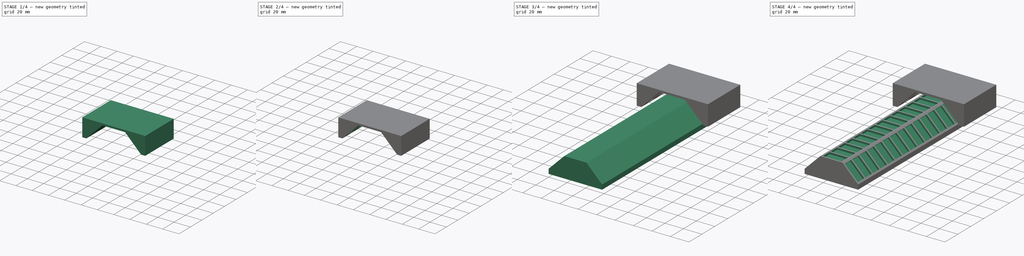
[diagram: build sequence overview — one tinted view per stage of 4, left to right]
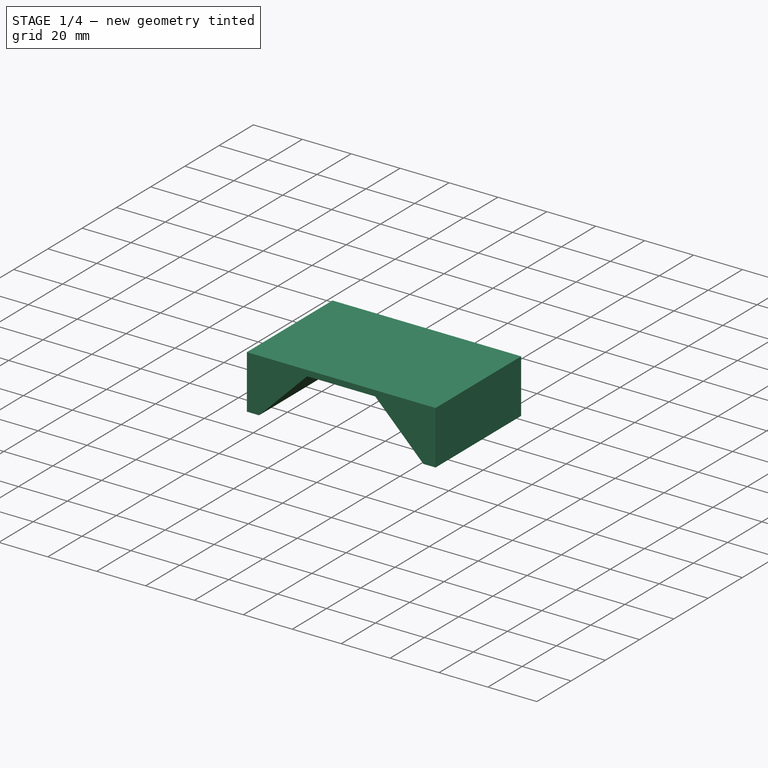
[diagram: stage 1 of 4 — iso view after this stage's code; geometry added in this stage tinted green]
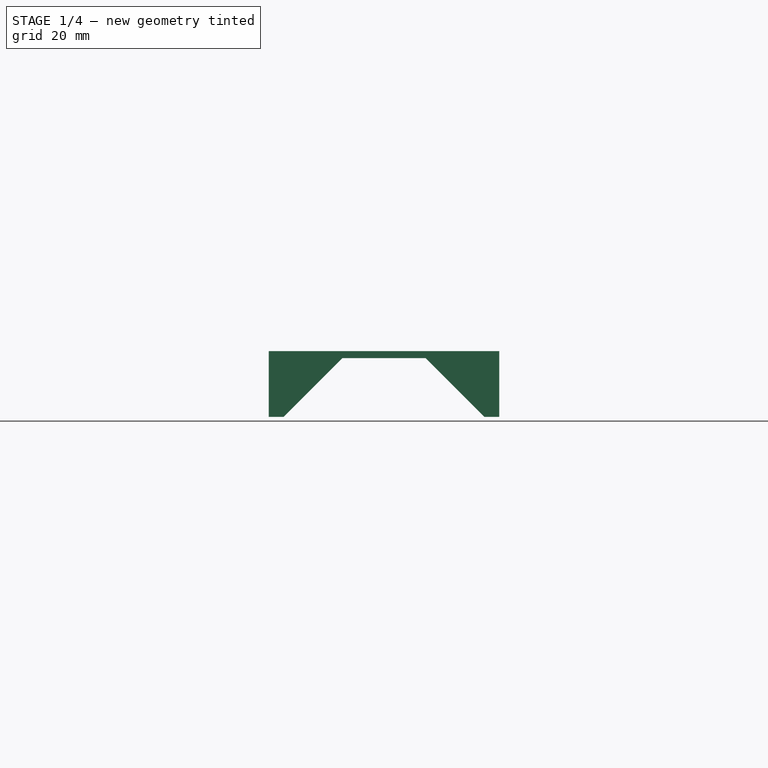
[diagram: stage 1 of 4 — front view after this stage's code; geometry added in this stage tinted green]
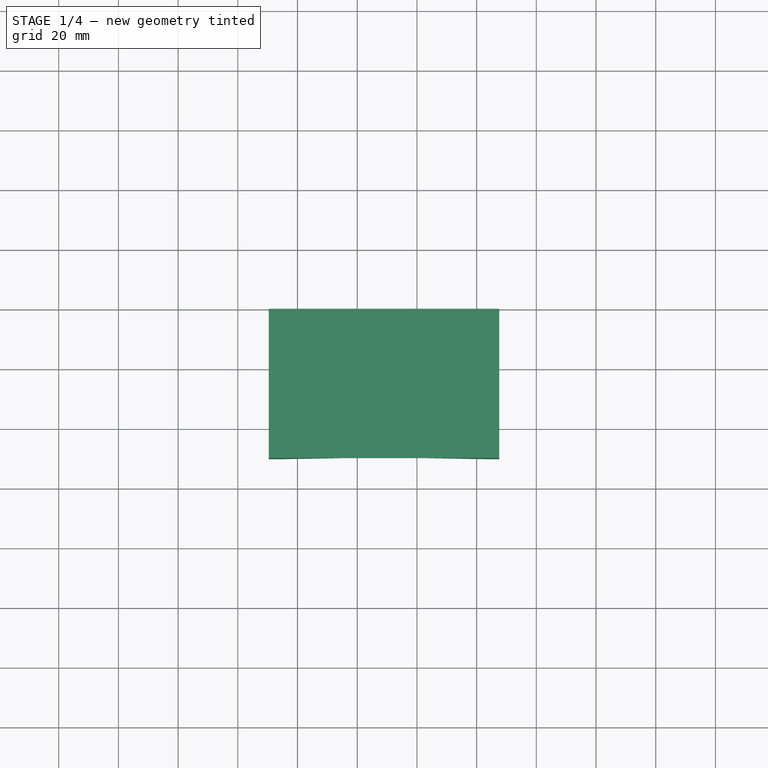
[diagram: stage 1 of 4 — top view after this stage's code; geometry added in this stage tinted green]
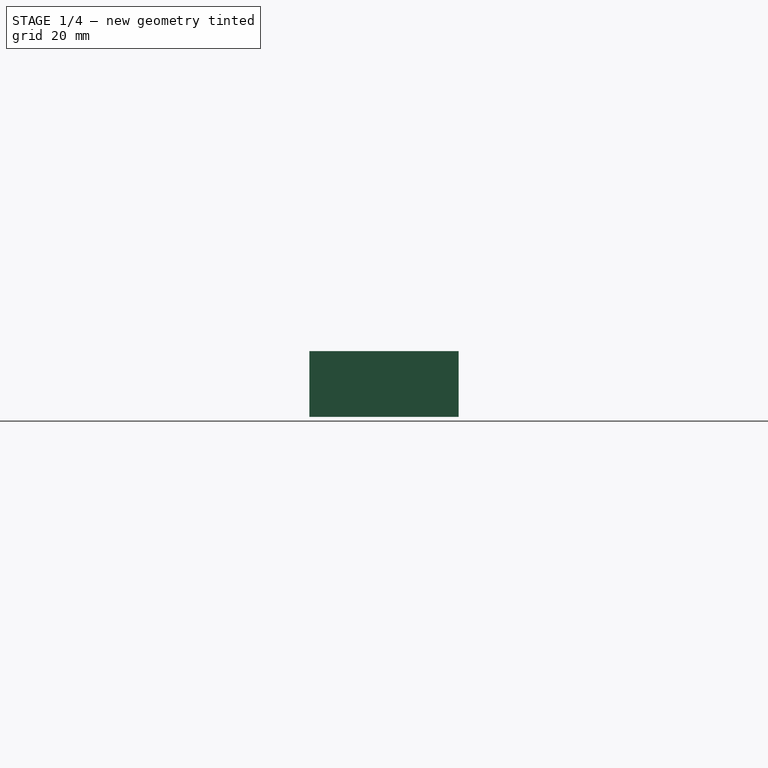
[diagram: stage 1 of 4 — right view after this stage's code; geometry added in this stage tinted green]
FCSTD DOCUMENT  (FreeCAD 0.21R33694 (Git))
Label: maglev
License: All rights reserved
LicenseURL: http://en.wikipedia.org/wiki/All_rights_reserved
objects: Sketcher::SketchObject×8, PartDesign::Pocket×6, PartDesign::Pad×2, PartDesign::LinearPattern×2, PartDesign::Body×2, App::MeasureDistance×2
note: 28 computed .brp shape members not serialized (recipe doc carries the construction recipe); baked Part::Feature solids carry a one-line shape summary decoded from their .brp

FEATURE [PartDesign::Body] Body  label="Rail"
  Group = -> [Sketch,Pad,Sketch001,Pocket,Sketch002,Pocket001,Sketch003,Pocket002,LinearPattern]
  Origin = -> Origin
  Tip = -> LinearPattern
FEATURE [Sketcher::SketchObject] Sketch004
  FullyConstrained = true
  MapMode = 5
  Placement = pos=(0,0,0) rot=(1,0,0;1.5708rad)
  Support = -> [XZ_Plane001]
  sketch-geometry (17):
    g0: LineSegment StartX=0 StartY=5 StartZ=0 EndX=16.9706 EndY=21.9706 EndZ=0
    g1: LineSegment StartX=16.9706 StartY=21.9706 StartZ=0 EndX=40.9706 EndY=21.9706 EndZ=0
    g2: LineSegment StartX=40.9706 StartY=21.9706 StartZ=0 EndX=57.9411 EndY=5 EndZ=0
    g3: LineSegment StartX=57.9411 StartY=5 StartZ=0 EndX=57.9411 EndY=0 EndZ=0
    g4: LineSegment StartX=0 StartY=5 StartZ=0 EndX=0 EndY=0 EndZ=0
    g5: LineSegment StartX=15.0571 StartY=26.59 StartZ=0 EndX=42.884 EndY=26.59 EndZ=0
    g6: LineSegment StartX=42.884 StartY=26.59 StartZ=0 EndX=62.5605 EndY=6.91342 EndZ=0
    g7: LineSegment StartX=62.5605 StartY=6.91342 StartZ=0 EndX=67.5605 EndY=6.91342 EndZ=0
    g8: LineSegment StartX=67.5605 StartY=6.91342 StartZ=0 EndX=67.5605 EndY=28.9134 EndZ=0
    g9: LineSegment StartX=67.5605 StartY=28.9134 StartZ=0 EndX=-9.6194 EndY=28.9134 EndZ=0
    g10: LineSegment StartX=-9.6194 StartY=28.9134 StartZ=0 EndX=-9.6194 EndY=6.91342 EndZ=0
    g11: LineSegment StartX=15.0571 StartY=26.59 StartZ=0 EndX=-4.6194 EndY=6.91342 EndZ=0
    g12: LineSegment StartX=-4.6194 StartY=6.91342 StartZ=0 EndX=-9.6194 EndY=6.91342 EndZ=0
    g13: LineSegment StartX=16.9706 StartY=21.9706 StartZ=0 EndX=15.0571 EndY=26.59 EndZ=0
    g14: LineSegment StartX=40.9706 StartY=21.9706 StartZ=0 EndX=42.884 EndY=26.59 EndZ=0
    g15: LineSegment StartX=57.9411 StartY=5 StartZ=0 EndX=62.5605 EndY=6.91342 EndZ=0
    g16: LineSegment StartX=0 StartY=5 StartZ=0 EndX=-4.6194 EndY=6.91342 EndZ=0
  constraints (47):
    c: PointOnObject(g0,g-2)
    c: Coincident(g1,g0)
    c: Horizontal(g1)
    c: Coincident(g2,g1)
    c: Coincident(g3,g2)
    c: PointOnObject(g3,g-1)
    c: Vertical(g3)
    c: Coincident(g4,g0)
    c: Coincident(g4,g-1)
    c: Equal(g4,g3)
    c: Equal(g0,g1)
    c: Equal(g1,g2)
    c: Distance(g2) = 24
    c: Angle(g-2,g0) = 2.35619
    c: DistanceY(g4,g4) = 5
    c: Horizontal(g5)
    c: Coincident(g6,g5)
    c: Coincident(g7,g6)
    c: Horizontal(g7)
    c: Coincident(g8,g7)
    c: Vertical(g8)
    c: Coincident(g9,g8)
    c: Horizontal(g9)
    c: Coincident(g10,g9)
    c: Vertical(g10)
    c: Coincident(g11,g5)
    c: Coincident(g12,g11)
    c: Coincident(g12,g10)
    c: Horizontal(g12)
    c: Equal(g10,g8)
    c: DistanceX(g12,g12) = 5
    c: Equal(g7,g12)
    c: Equal(g11,g5)
    c: Equal(g5,g6)
    c: Coincident(g13,g0)
    c: Coincident(g13,g5)
    c: Coincident(g14,g1)
    c: Coincident(g14,g5)
    c: Coincident(g15,g2)
    c: Coincident(g15,g6)
    c: Coincident(g16,g0)
    c: Coincident(g16,g11)
    c: Equal(g16,g13)
    c: Equal(g13,g14)
    c: Distance(g15) = 5
    c: DistanceY(g10,g10) = 22
    c: Parallel(g11,g0)
FEATURE [PartDesign::Pad] Pad001
  Direction = (0,-1,2e-16)
  Length = 50
  Length2 = 10
  Placement = pos=(0,0,0) rot=(1,0,0;1.5708rad)
  Profile = -> Sketch004
  ReferenceAxis = -> Sketch004 [N_Axis]
  Type = 0
FEATURE [Sketcher::SketchObject] Sketch005
  ExternalGeometry = -> [Pad001]
  FullyConstrained = true
  MapMode = 5
  Placement = pos=(-5.76641,1.3e-15,5.76641) rot=(0.92388,0,0.382683;3.14159rad)
  Support = -> [Pad001]
  sketch-geometry (7):
    g0: LineSegment StartX=5.53553 StartY=13.9134 StartZ=0 EndX=25.5355 EndY=13.9134 EndZ=0
    g1: LineSegment StartX=25.5355 StartY=13.9134 StartZ=0 EndX=25.5355 EndY=3.91342 EndZ=0
    g2: LineSegment StartX=25.5355 StartY=3.91342 StartZ=0 EndX=5.53553 EndY=3.91342 EndZ=0
    g3: LineSegment StartX=5.53553 StartY=3.91342 StartZ=0 EndX=5.53553 EndY=13.9134 EndZ=0
    g4: LineSegment StartX=25.5355 StartY=3.91342 StartZ=0 EndX=29.449 EndY=3.91342 EndZ=0
    g5: LineSegment StartX=5.53553 StartY=3.91342 StartZ=0 EndX=5.53553 EndY=0 EndZ=0
    g6: LineSegment StartX=5.53553 StartY=3.91342 StartZ=0 EndX=1.62212 EndY=3.91342 EndZ=0
  constraints (21):
    c: Coincident(g0,g1)
    c: Coincident(g1,g2)
    c: Coincident(g2,g3)
    c: Coincident(g3,g0)
    c: Horizontal(g0)
    c: Horizontal(g2)
    c: Vertical(g1)
    c: Vertical(g3)
    c: Coincident(g4,g1)
    c: PointOnObject(g4,g-3)
    c: Horizontal(g4)
    c: Coincident(g5,g2)
    c: PointOnObject(g5,g-1)
    c: Vertical(g5)
    c: Coincident(g6,g2)
    c: PointOnObject(g6,g-4)
    c: Horizontal(g6)
    c: Equal(g6,g5)
    c: Equal(g5,g4)
    c: DistanceX(g2,g2) = 20
    c: DistanceY(g3,g3) = 10
FEATURE [PartDesign::Pocket] Pocket003
  BaseFeature = -> Pad001
  Direction = (-0.707107,2e-16,0.707107)
  Length = 2
  Length2 = 5
  Placement = pos=(0,0,0) rot=(1,0,0;1.5708rad)
  Profile = -> Sketch005
  ReferenceAxis = -> Sketch005 [N_Axis]
  Type = 0
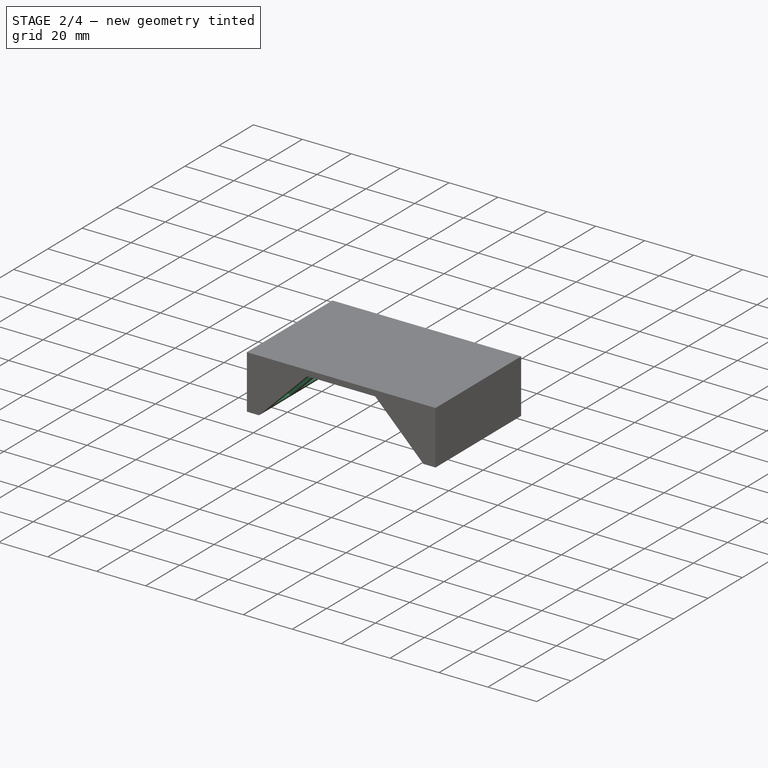
[diagram: stage 2 of 4 — iso view after this stage's code; geometry added in this stage tinted green]
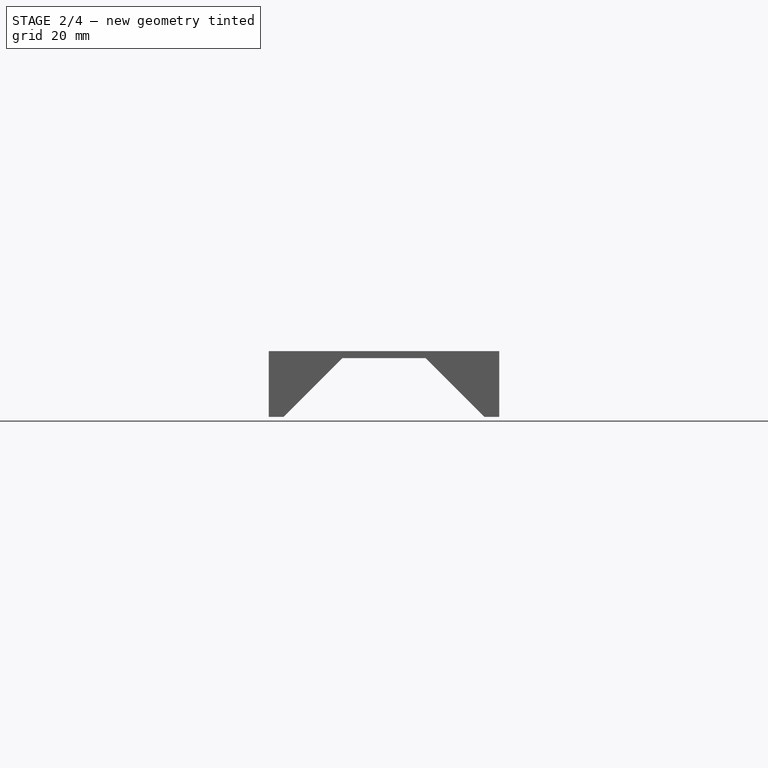
[diagram: stage 2 of 4 — front view after this stage's code; geometry added in this stage tinted green]
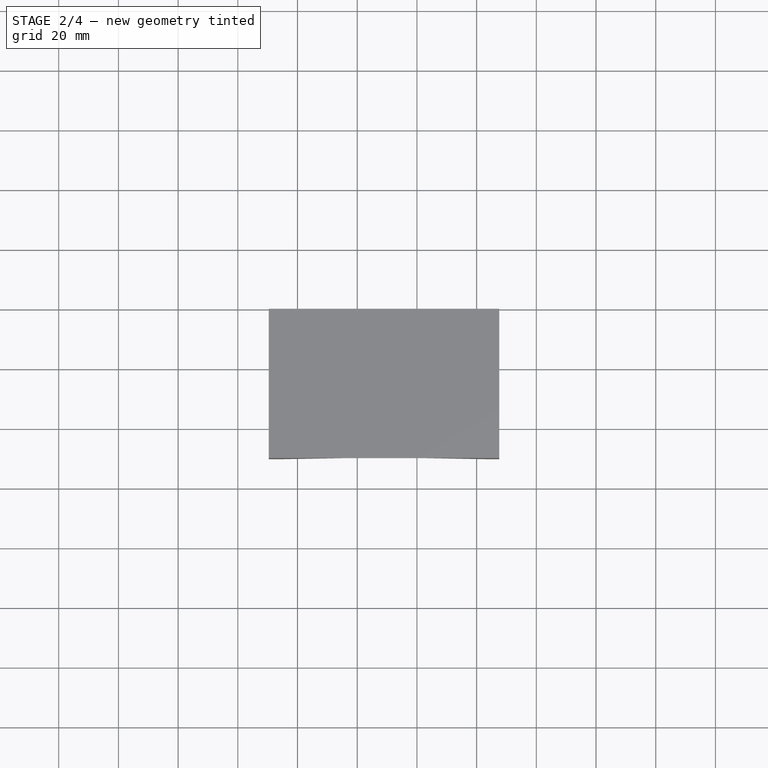
[diagram: stage 2 of 4 — top view after this stage's code; geometry added in this stage tinted green]
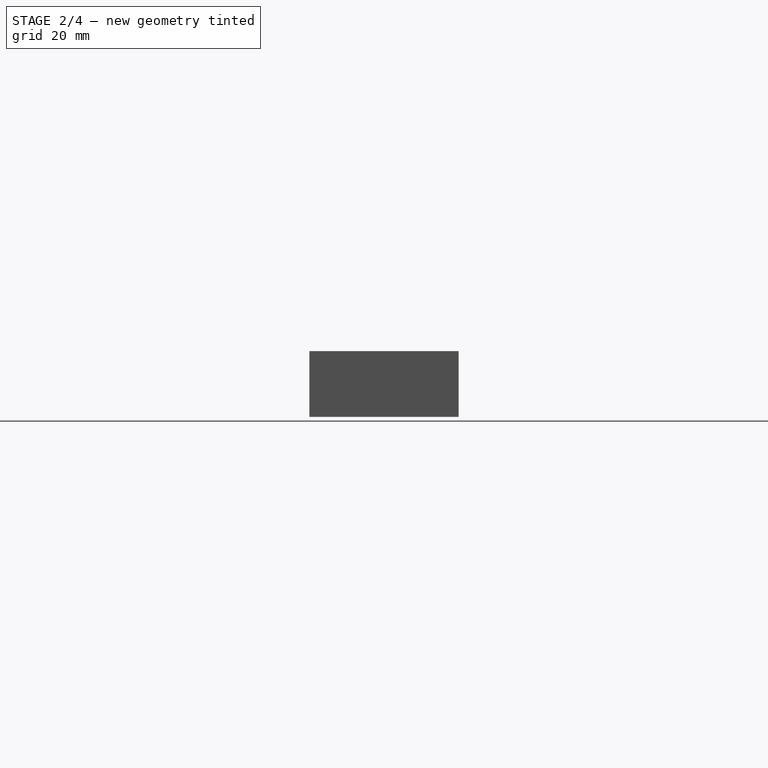
[diagram: stage 2 of 4 — right view after this stage's code; geometry added in this stage tinted green]
FEATURE [Sketcher::SketchObject] Sketch006
  ExternalGeometry = -> [Pocket003]
  FullyConstrained = true
  MapMode = 5
  Placement = pos=(0,5.9e-15,26.59) rot=(1,0,0;3.14159rad)
  Support = -> [Pocket003]
  sketch-geometry (7):
    g0: LineSegment StartX=18.9706 StartY=13.9134 StartZ=0 EndX=38.9706 EndY=13.9134 EndZ=0
    g1: LineSegment StartX=38.9706 StartY=13.9134 StartZ=0 EndX=38.9706 EndY=3.91342 EndZ=0
    g2: LineSegment StartX=38.9706 StartY=3.91342 StartZ=0 EndX=18.9706 EndY=3.91342 EndZ=0
    g3: LineSegment StartX=18.9706 StartY=3.91342 StartZ=0 EndX=18.9706 EndY=13.9134 EndZ=0
    g4: LineSegment StartX=18.9706 StartY=3.91342 StartZ=0 EndX=15.0571 EndY=3.91342 EndZ=0
    g5: LineSegment StartX=38.9706 StartY=3.91342 StartZ=0 EndX=42.884 EndY=3.91342 EndZ=0
    g6: LineSegment StartX=18.9706 StartY=3.91342 StartZ=0 EndX=18.9706 EndY=0 EndZ=0
  constraints (21):
    c: Coincident(g0,g1)
    c: Coincident(g1,g2)
    c: Coincident(g2,g3)
    c: Coincident(g3,g0)
    c: Horizontal(g0)
    c: Horizontal(g2)
    c: Vertical(g1)
    c: Vertical(g3)
    c: Coincident(g4,g2)
    c: PointOnObject(g4,g-4)
    c: Horizontal(g4)
    c: Coincident(g5,g1)
    c: PointOnObject(g5,g-3)
    c: Horizontal(g5)
    c: Coincident(g6,g2)
    c: PointOnObject(g6,g-1)
    c: Vertical(g6)
    c: Equal(g4,g6)
    c: Equal(g6,g5)
    c: DistanceX(g2,g2) = 20
    c: DistanceY(g3,g3) = 10
FEATURE [PartDesign::Pocket] Pocket004
  BaseFeature = -> Pocket003
  Direction = (0,2e-16,1)
  Length = 2
  Length2 = 5
  Placement = pos=(0,0,0) rot=(1,0,0;1.5708rad)
  Profile = -> Sketch006
  ReferenceAxis = -> Sketch006 [N_Axis]
  Type = 0
FEATURE [Sketcher::SketchObject] Sketch007
  ExternalGeometry = -> [Pocket004]
  FullyConstrained = true
  MapMode = 5
  Placement = pos=(34.737,7.7e-15,34.737) rot=(0.92388,0,-0.382683;3.14159rad)
  Support = -> [Pocket004]
  sketch-geometry (7):
    g0: LineSegment StartX=15.435 StartY=13.9134 StartZ=0 EndX=35.435 EndY=13.9134 EndZ=0
    g1: LineSegment StartX=35.435 StartY=13.9134 StartZ=0 EndX=35.435 EndY=3.91342 EndZ=0
    g2: LineSegment StartX=35.435 StartY=3.91342 StartZ=0 EndX=15.435 EndY=3.91342 EndZ=0
    g3: LineSegment StartX=15.435 StartY=3.91342 StartZ=0 EndX=15.435 EndY=13.9134 EndZ=0
    g4: LineSegment StartX=15.435 StartY=3.91342 StartZ=0 EndX=11.5216 EndY=3.91342 EndZ=0
    g5: LineSegment StartX=15.435 StartY=3.91342 StartZ=0 EndX=15.435 EndY=0 EndZ=0
    g6: LineSegment StartX=35.435 StartY=3.91342 StartZ=0 EndX=39.3484 EndY=3.91342 EndZ=0
  constraints (21):
    c: Coincident(g0,g1)
    c: Coincident(g1,g2)
    c: Coincident(g2,g3)
    c: Coincident(g3,g0)
    c: Horizontal(g0)
    c: Horizontal(g2)
    c: Vertical(g1)
    c: Vertical(g3)
    c: Coincident(g4,g2)
    c: PointOnObject(g4,g-4)
    c: Horizontal(g4)
    c: Coincident(g5,g2)
    c: PointOnObject(g5,g-1)
    c: Vertical(g5)
    c: Coincident(g6,g1)
    c: PointOnObject(g6,g-3)
    c: Horizontal(g6)
    c: Equal(g6,g5)
    c: Equal(g5,g4)
    c: DistanceX(g2,g2) = 20
    c: DistanceY(g1,g1) = 10
FEATURE [PartDesign::Pocket] Pocket005
  BaseFeature = -> Pocket004
  Direction = (0.707107,2e-16,0.707107)
  Length = 2
  Length2 = 5
  Placement = pos=(0,0,0) rot=(1,0,0;1.5708rad)
  Profile = -> Sketch007
  ReferenceAxis = -> Sketch007 [N_Axis]
  Type = 0
FEATURE [PartDesign::LinearPattern] LinearPattern001
  BaseFeature = -> Pocket005
  Direction = -> Pocket005 [Edge1]
  Length = 32
  Occurrences = 3
  Originals = -> [Pocket003,Pocket004,Pocket005]
  Placement = pos=(0,0,0) rot=(1,0,0;1.5708rad)
FEATURE [PartDesign::Body] Body001  label="Locomotive"
  Group = -> [Sketch004,Pad001,Sketch005,Pocket003,Sketch006,Pocket004,Sketch007,Pocket005,LinearPattern001]
  Origin = -> Origin001
  Tip = -> LinearPattern001
FEATURE [App::MeasureDistance] Distance  label="Distance: 1.60 mm"
  Distance = 1.60066
  P1 = (52.1068,-165.059,10.8343)
  P2 = (52.1857,-163.462,10.7554)
FEATURE [App::MeasureDistance] Distance001  label="Distance: 5.99 mm"
  Distance = 5.98917
  P1 = (12.2899,-35.9134,23.8228)
  P2 = (12.2795,-29.9243,23.8123)
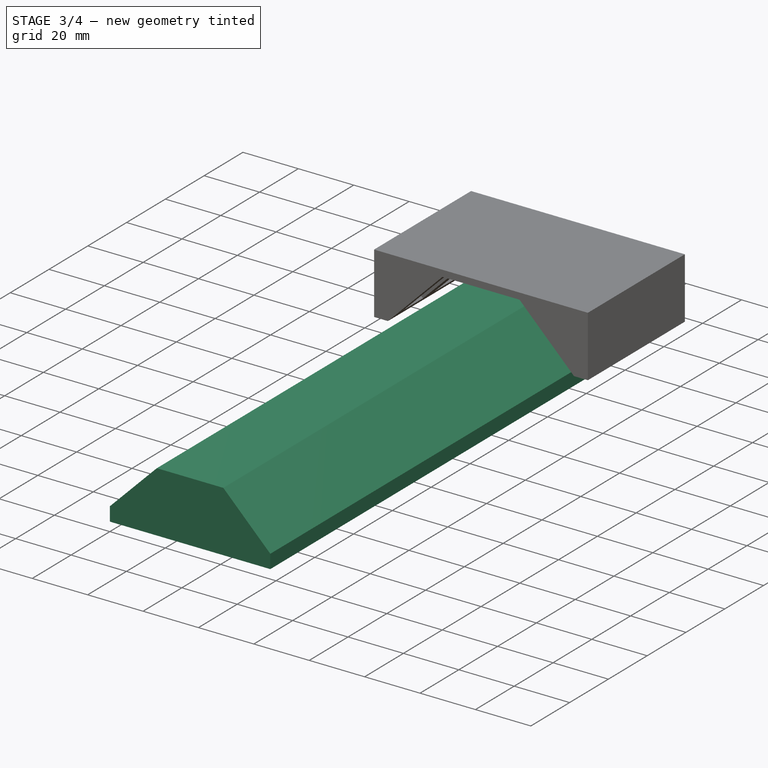
[diagram: stage 3 of 4 — iso view after this stage's code; geometry added in this stage tinted green]
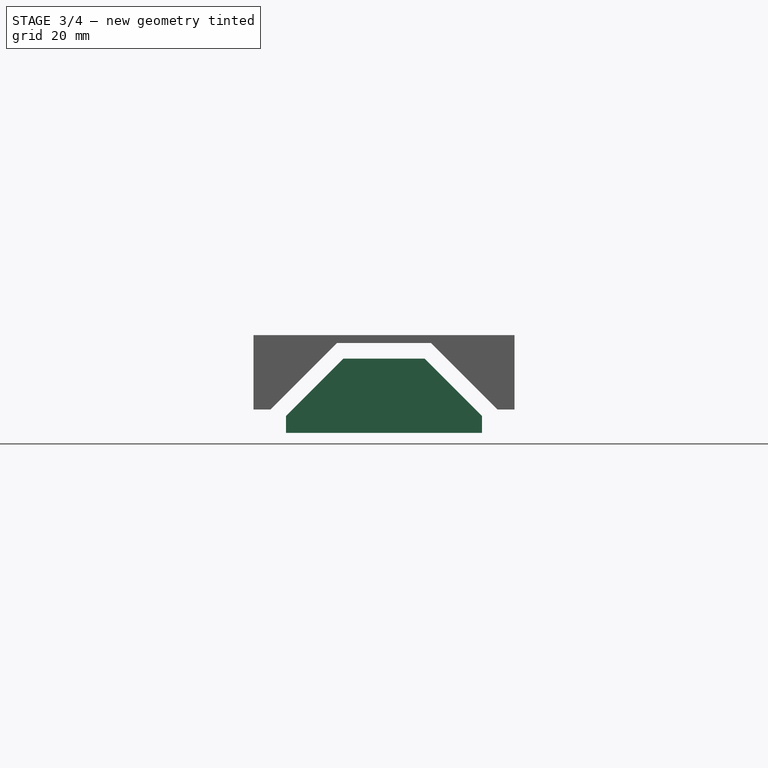
[diagram: stage 3 of 4 — front view after this stage's code; geometry added in this stage tinted green]
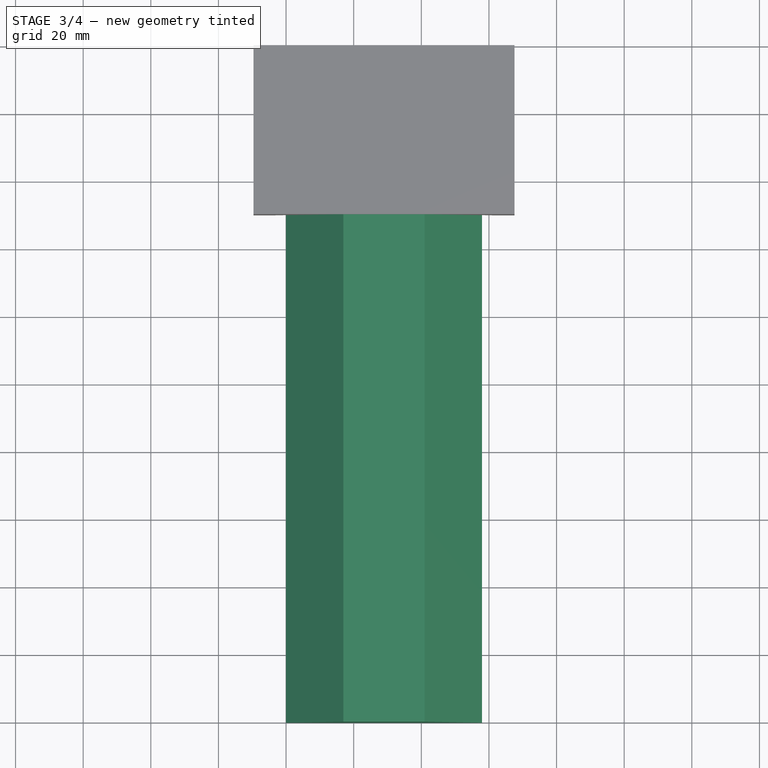
[diagram: stage 3 of 4 — top view after this stage's code; geometry added in this stage tinted green]
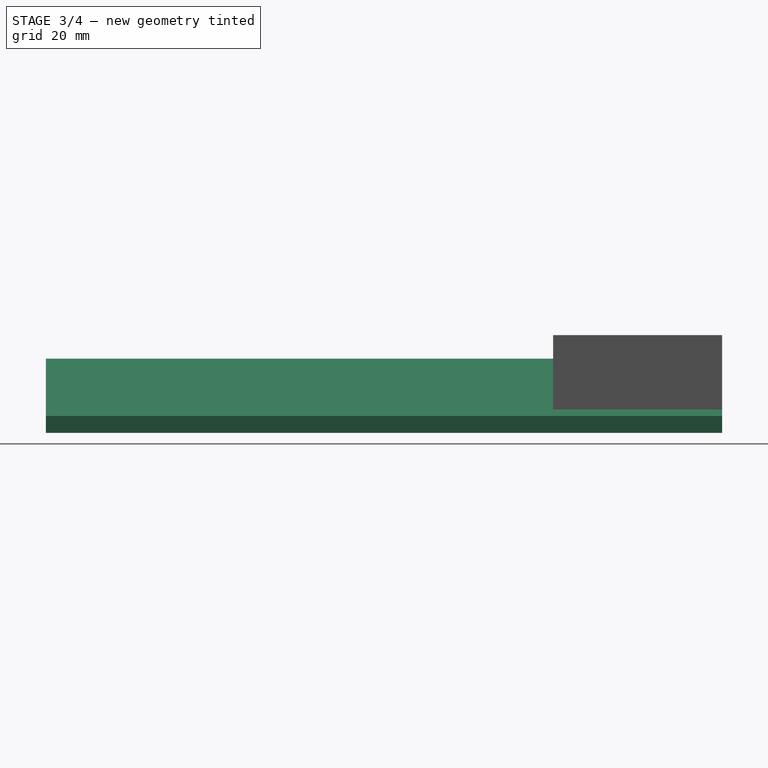
[diagram: stage 3 of 4 — right view after this stage's code; geometry added in this stage tinted green]
FEATURE [Sketcher::SketchObject] Sketch
  FullyConstrained = true
  MapMode = 5
  Placement = pos=(0,0,0) rot=(1,0,0;1.5708rad)
  Support = -> [XZ_Plane]
  sketch-geometry (6):
    g0: LineSegment StartX=0 StartY=0 StartZ=0 EndX=0 EndY=5 EndZ=0
    g1: LineSegment StartX=0 StartY=5 StartZ=0 EndX=16.9706 EndY=21.9706 EndZ=0
    g2: LineSegment StartX=16.9706 StartY=21.9706 StartZ=0 EndX=40.9706 EndY=21.9706 EndZ=0
    g3: LineSegment StartX=40.9706 StartY=21.9706 StartZ=0 EndX=57.9411 EndY=5 EndZ=0
    g4: LineSegment StartX=57.9411 StartY=5 StartZ=0 EndX=57.9411 EndY=0 EndZ=0
    g5: LineSegment StartX=57.9411 StartY=0 StartZ=0 EndX=0 EndY=0 EndZ=0
  constraints (17):
    c: Coincident(g0,g-1)
    c: PointOnObject(g0,g-2)
    c: Coincident(g1,g0)
    c: Coincident(g2,g1)
    c: Horizontal(g2)
    c: Coincident(g3,g2)
    c: Coincident(g4,g3)
    c: Vertical(g4)
    c: Coincident(g5,g4)
    c: Coincident(g5,g0)
    c: Horizontal(g5)
    c: Equal(g0,g4)
    c: Equal(g3,g1)
    c: DistanceY(g4,g4) = 5
    c: Distance(g3) = 24
    c: Distance(g2) = 24
    c: Angle(g-2,g1) = 2.35619
FEATURE [PartDesign::Pad] Pad
  Direction = (0,-1,2e-16)
  Length = 200
  Length2 = 10
  Placement = pos=(0,0,0) rot=(1,0,0;1.5708rad)
  Profile = -> Sketch
  ReferenceAxis = -> Sketch [N_Axis]
  Type = 0
FEATURE [Sketcher::SketchObject] Sketch001
  ExternalGeometry = -> [Pad]
  FullyConstrained = true
  MapMode = 5
  Placement = pos=(0,4.9e-15,21.9706) rot=(0,0,1;3.14159rad)
  Support = -> [Pad]
  sketch-geometry (7):
    g0: LineSegment StartX=-38.9706 StartY=12 StartZ=0 EndX=-18.9706 EndY=12 EndZ=0
    g1: LineSegment StartX=-18.9706 StartY=12 StartZ=0 EndX=-18.9706 EndY=2 EndZ=0
    g2: LineSegment StartX=-18.9706 StartY=2 StartZ=0 EndX=-38.9706 EndY=2 EndZ=0
    g3: LineSegment StartX=-38.9706 StartY=2 StartZ=0 EndX=-38.9706 EndY=12 EndZ=0
    g4: LineSegment StartX=-38.9706 StartY=2 StartZ=0 EndX=-40.9706 EndY=2 EndZ=0
    g5: LineSegment StartX=-18.9706 StartY=2 StartZ=0 EndX=-16.9706 EndY=2 EndZ=0
    g6: LineSegment StartX=-38.9706 StartY=2 StartZ=0 EndX=-38.9706 EndY=0 EndZ=0
  constraints (21):
    c: Coincident(g0,g1)
    c: Coincident(g1,g2)
    c: Coincident(g2,g3)
    c: Coincident(g3,g0)
    c: Horizontal(g0)
    c: Horizontal(g2)
    c: Vertical(g1)
    c: Vertical(g3)
    c: DistanceX(g2,g2) = 20
    c: DistanceY(g1,g1) = 10
    c: Coincident(g4,g2)
    c: PointOnObject(g4,g-4)
    c: Horizontal(g4)
    c: Coincident(g5,g1)
    c: PointOnObject(g5,g-3)
    c: Horizontal(g5)
    c: Coincident(g6,g2)
    c: PointOnObject(g6,g-1)
    c: Vertical(g6)
    c: Equal(g4,g6)
    c: Equal(g6,g5)
FEATURE [PartDesign::Pocket] Pocket
  BaseFeature = -> Pad
  Direction = (0,-2e-16,-1)
  Length = 2
  Length2 = 5
  Placement = pos=(0,0,0) rot=(1,0,0;1.5708rad)
  Profile = -> Sketch001
  ReferenceAxis = -> Sketch001 [N_Axis]
  Type = 0
FEATURE [Sketcher::SketchObject] Sketch002
  ExternalGeometry = -> [Pocket]
  FullyConstrained = true
  MapMode = 5
  Placement = pos=(31.4706,7e-15,31.4706) rot=(0.382683,0,0.92388;3.14159rad)
  Support = -> [Pocket]
  sketch-geometry (7):
    g0: LineSegment StartX=-35.435 StartY=12 StartZ=0 EndX=-15.435 EndY=12 EndZ=0
    g1: LineSegment StartX=-15.435 StartY=12 StartZ=0 EndX=-15.435 EndY=2 EndZ=0
    g2: LineSegment StartX=-15.435 StartY=2 StartZ=0 EndX=-35.435 EndY=2 EndZ=0
    g3: LineSegment StartX=-35.435 StartY=2 StartZ=0 EndX=-35.435 EndY=12 EndZ=0
    g4: LineSegment StartX=-35.435 StartY=2 StartZ=0 EndX=-37.435 EndY=2 EndZ=0
    g5: LineSegment StartX=-35.435 StartY=2 StartZ=0 EndX=-35.435 EndY=0 EndZ=0
    g6: LineSegment StartX=-15.435 StartY=2 StartZ=0 EndX=-13.435 EndY=2 EndZ=0
  constraints (21):
    c: Coincident(g0,g1)
    c: Coincident(g1,g2)
    c: Coincident(g2,g3)
    c: Coincident(g3,g0)
    c: Horizontal(g0)
    c: Horizontal(g2)
    c: Vertical(g1)
    c: Vertical(g3)
    c: DistanceX(g2,g2) = 20
    c: DistanceY(g1,g1) = 10
    c: Coincident(g4,g2)
    c: PointOnObject(g4,g-4)
    c: Horizontal(g4)
    c: Coincident(g5,g2)
    c: PointOnObject(g5,g-1)
    c: Vertical(g5)
    c: Coincident(g6,g1)
    c: PointOnObject(g6,g-3)
    c: Horizontal(g6)
    c: Equal(g6,g5)
    c: Equal(g5,g4)
FEATURE [PartDesign::Pocket] Pocket001
  BaseFeature = -> Pocket
  Direction = (-0.707107,-2e-16,-0.707107)
  Length = 2
  Length2 = 5
  Placement = pos=(0,0,0) rot=(1,0,0;1.5708rad)
  Profile = -> Sketch002
  ReferenceAxis = -> Sketch002 [N_Axis]
  Type = 0
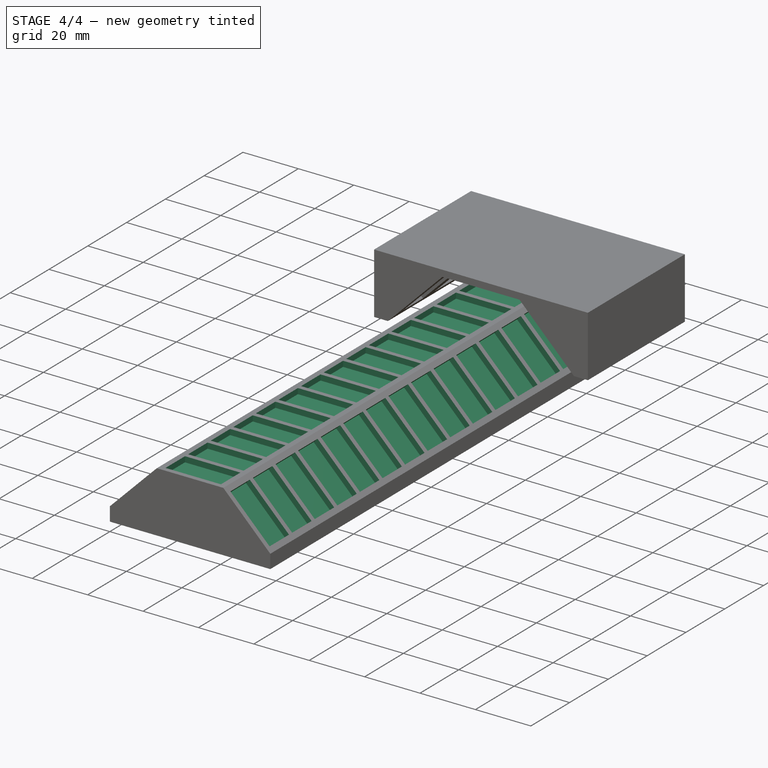
[diagram: stage 4 of 4 — iso view after this stage's code; geometry added in this stage tinted green]
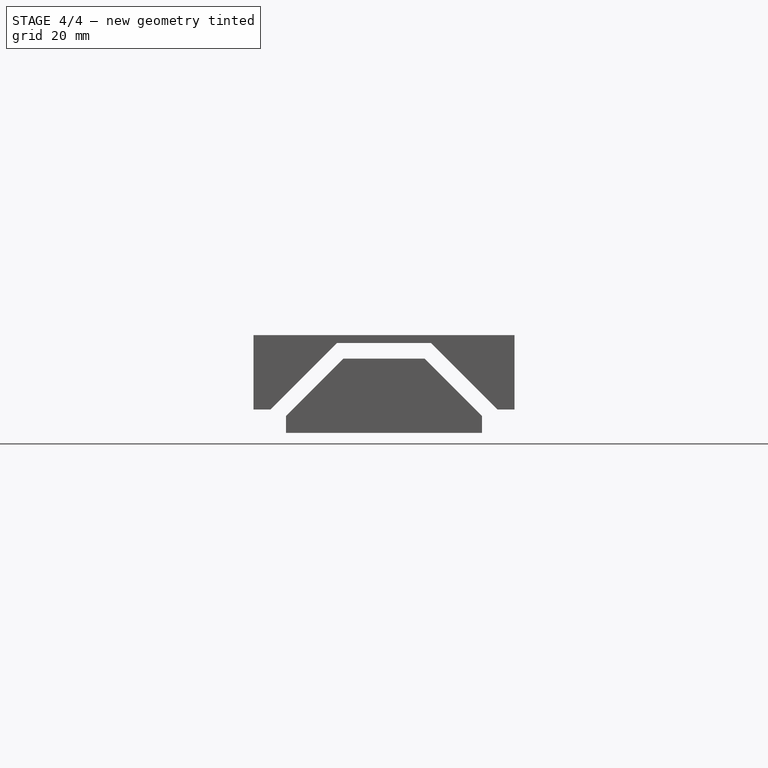
[diagram: stage 4 of 4 — front view after this stage's code; geometry added in this stage tinted green]
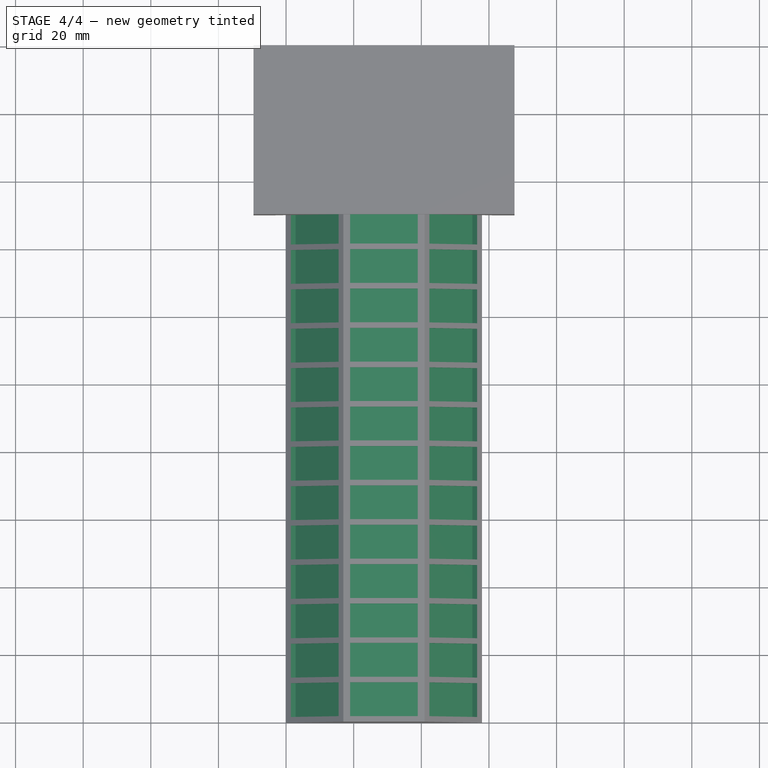
[diagram: stage 4 of 4 — top view after this stage's code; geometry added in this stage tinted green]
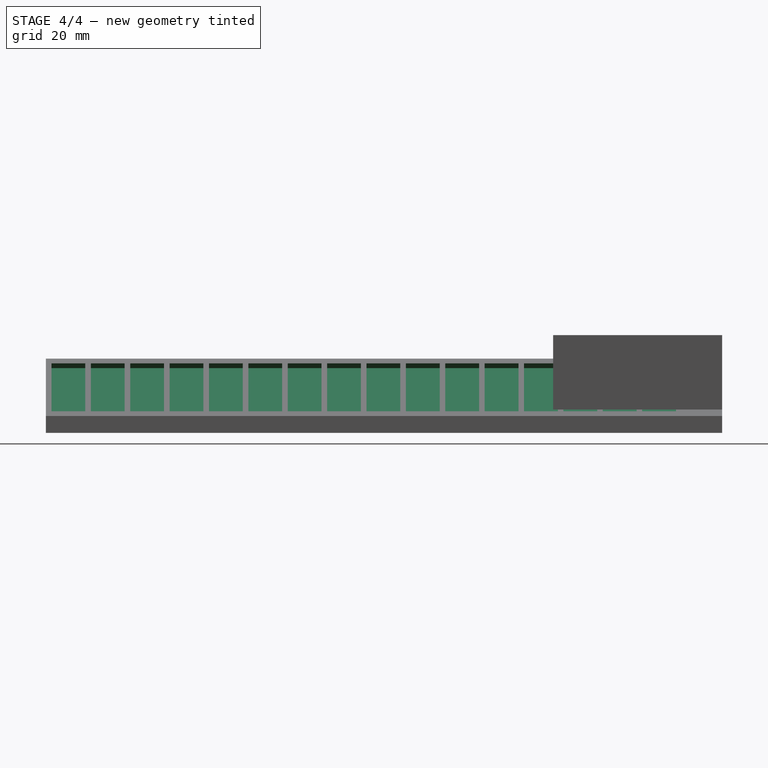
[diagram: stage 4 of 4 — right view after this stage's code; geometry added in this stage tinted green]
FEATURE [Sketcher::SketchObject] Sketch003
  ExternalGeometry = -> [Pocket001]
  FullyConstrained = true
  MapMode = 5
  Placement = pos=(-2.5,6e-16,2.5) rot=(-0.382683,0,0.92388;3.14159rad)
  Support = -> [Pocket001]
  sketch-geometry (7):
    g0: LineSegment StartX=-25.5355 StartY=12 StartZ=0 EndX=-5.53553 EndY=12 EndZ=0
    g1: LineSegment StartX=-5.53553 StartY=12 StartZ=0 EndX=-5.53553 EndY=2 EndZ=0
    g2: LineSegment StartX=-5.53553 StartY=2 StartZ=0 EndX=-25.5355 EndY=2 EndZ=0
    g3: LineSegment StartX=-25.5355 StartY=2 StartZ=0 EndX=-25.5355 EndY=12 EndZ=0
    g4: LineSegment StartX=-25.5355 StartY=2 StartZ=0 EndX=-27.5355 EndY=2 EndZ=0
    g5: LineSegment StartX=-25.5355 StartY=2 StartZ=0 EndX=-25.5355 EndY=0 EndZ=0
    g6: LineSegment StartX=-5.53553 StartY=2 StartZ=0 EndX=-3.53553 EndY=2 EndZ=0
  constraints (21):
    c: Coincident(g0,g1)
    c: Coincident(g1,g2)
    c: Coincident(g2,g3)
    c: Coincident(g3,g0)
    c: Horizontal(g0)
    c: Horizontal(g2)
    c: Vertical(g1)
    c: Vertical(g3)
    c: DistanceX(g2,g2) = 20
    c: DistanceY(g1,g1) = 10
    c: Coincident(g4,g2)
    c: PointOnObject(g4,g-4)
    c: Horizontal(g4)
    c: Coincident(g5,g2)
    c: PointOnObject(g5,g-1)
    c: Vertical(g5)
    c: Coincident(g6,g1)
    c: PointOnObject(g6,g-3)
    c: Horizontal(g6)
    c: Equal(g4,g5)
    c: Equal(g5,g6)
FEATURE [PartDesign::Pocket] Pocket002
  BaseFeature = -> Pocket001
  Direction = (0.707107,-2e-16,-0.707107)
  Length = 2
  Length2 = 5
  Placement = pos=(0,0,0) rot=(1,0,0;1.5708rad)
  Profile = -> Sketch003
  ReferenceAxis = -> Sketch003 [N_Axis]
  Type = 0
FEATURE [PartDesign::LinearPattern] LinearPattern
  BaseFeature = -> Pocket002
  Direction = -> Sketch001 [V_Axis]
  Length = 198
  Occurrences = 18
  Originals = -> [Pocket,Pocket001,Pocket002]
  Placement = pos=(0,0,0) rot=(1,0,0;1.5708rad)
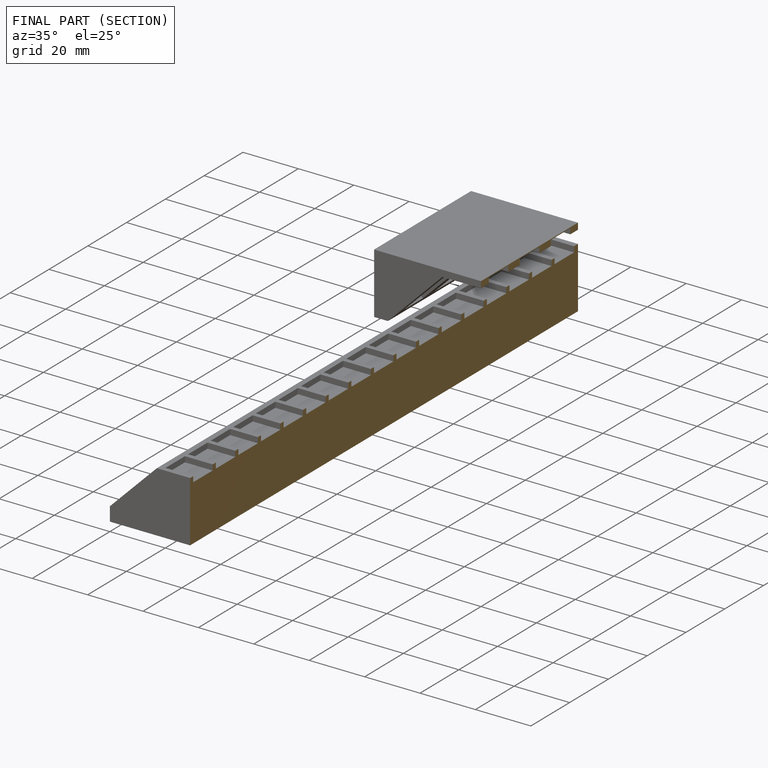
[diagram: finished part — half-section view (interior)]
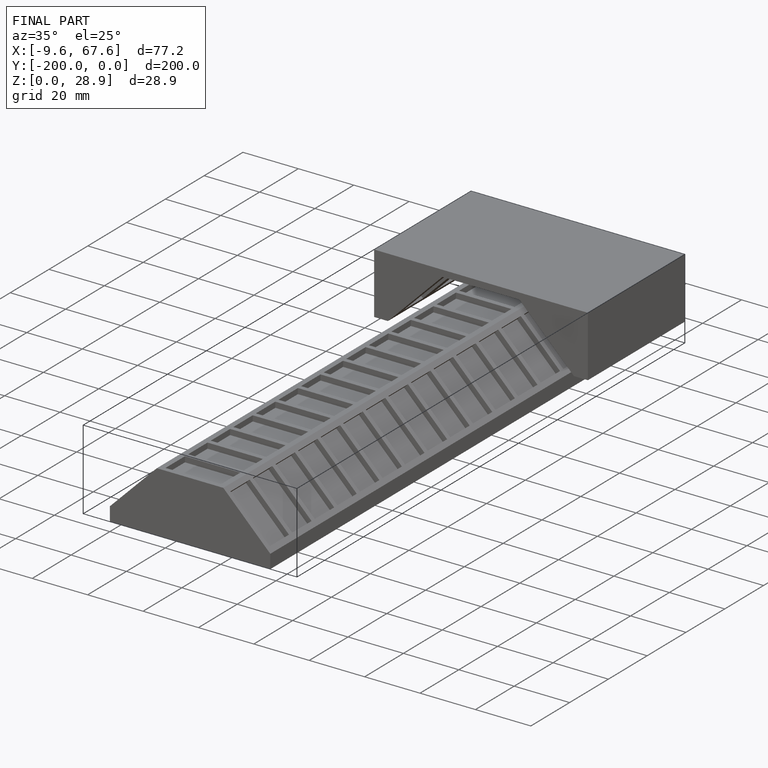
[diagram: finished part — iso view with bounding-box wireframe]
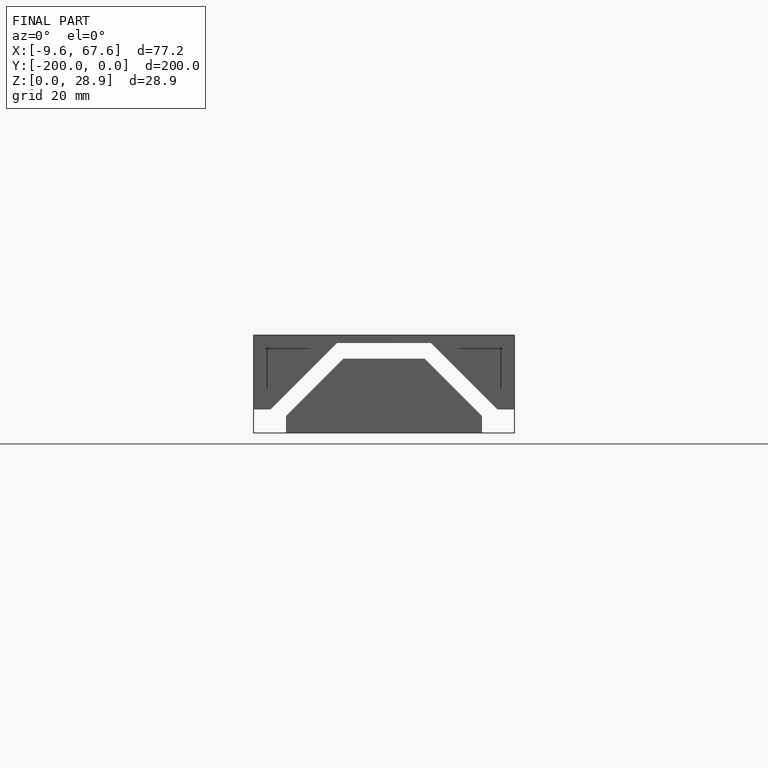
[diagram: finished part — front view with bounding-box wireframe]
